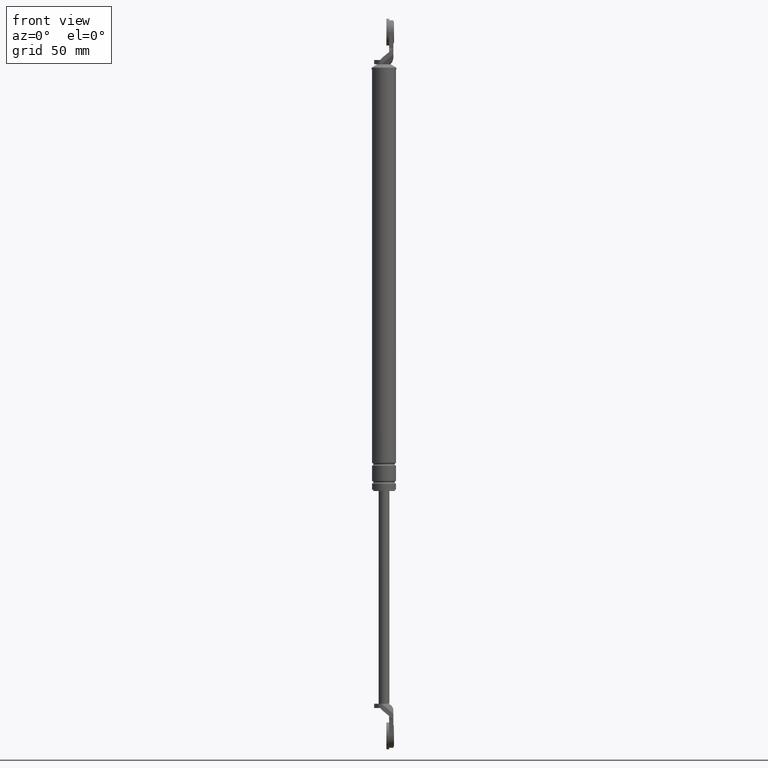
[diagram: clean part render]
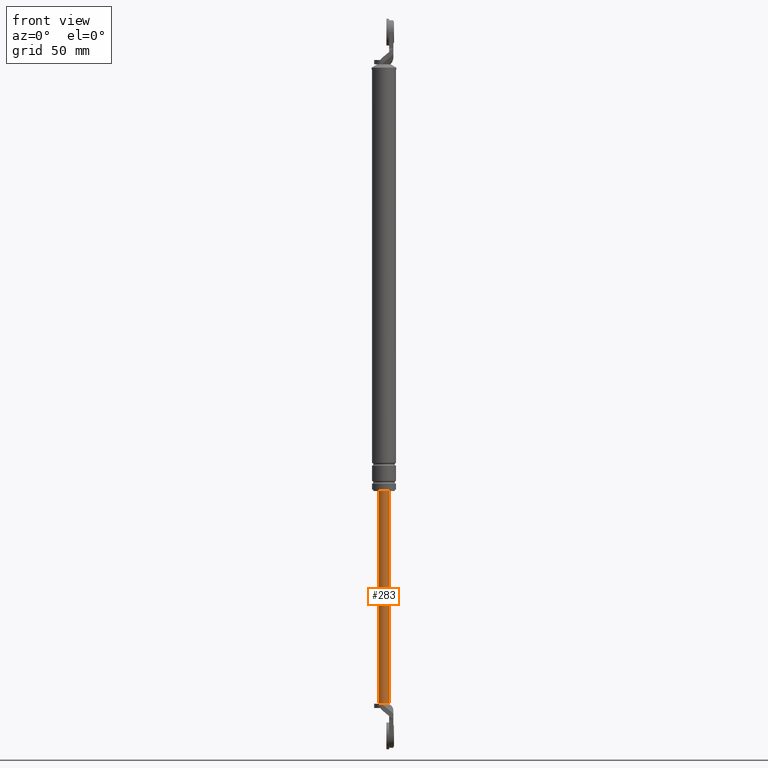
[diagram: same view with one face highlighted and labeled with its STEP entity id]
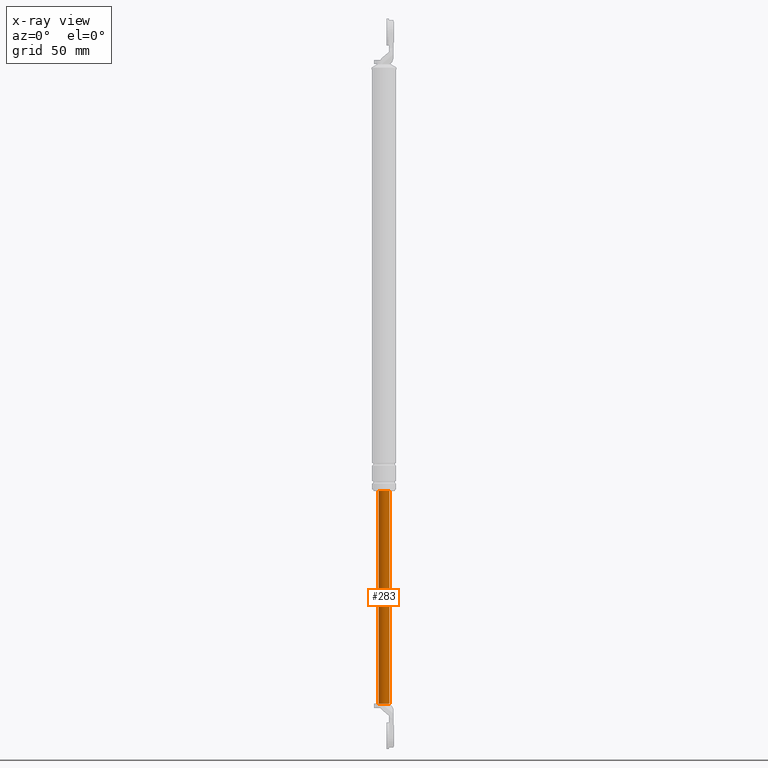
[diagram: x-ray of the same camera — body ghosted, the highlighted face saturated]
A machine part, front view. The second image highlights one B-rep face of the part: STEP entity #283.
The next image is the same camera in x-ray: the body ghosted, the highlighted face saturated — about 0% of this face is hidden behind the body in this view.
In plain terms, the highlighted cylindrical surface (edge-blend (fillet) strip) has radius 4 mm, axis along (0, 0, 1).
Its self-contained STEP definition (entity closure, byte-faithful):
#283=ADVANCED_FACE('',(#1087),#1086,.T.);
#1086=CYLINDRICAL_SURFACE('',#1750,4.00000000000E+000);
#1087=FACE_OUTER_BOUND('',#1751,.T.);
#1747=CARTESIAN_POINT('',(0.00000000000E+000,3.58204186421E-014,0.00000000000E+000));
#1748=DIRECTION('',(-0.00000000000E+000,-0.00000000000E+000,1.00000000000E+000));
#1749=DIRECTION('',(1.00000000000E+000,-0.00000000000E+000,-0.00000000000E+000));
#1750=AXIS2_PLACEMENT_3D('',#1747,#1748,#1749);
#1751=EDGE_LOOP('',(#2145,#2146,#2147,#2148,#2149));
#2145=ORIENTED_EDGE('',*,*,#2348,.F.);
#2146=ORIENTED_EDGE('',*,*,#2319,.F.);
#2147=ORIENTED_EDGE('',*,*,#2352,.T.);
#2148=ORIENTED_EDGE('',*,*,#2350,.T.);
#2149=ORIENTED_EDGE('',*,*,#2353,.F.);
#2319=EDGE_CURVE('',#3426,#3404,#3433,.T.);
#2348=EDGE_CURVE('',#3404,#3619,#3620,.T.);
#2350=EDGE_CURVE('',#3632,#3633,#3634,.T.);
#2352=EDGE_CURVE('',#3426,#3632,#3646,.T.);
#2353=EDGE_CURVE('',#3619,#3633,#3652,.T.);
#3404=VERTEX_POINT('',#4315);
#3426=VERTEX_POINT('',#4329);
#3433=CIRCLE('',#4337,4.00000000000E+000);
#3619=VERTEX_POINT('',#4439);
#3620=CIRCLE('',#4443,4.00000000000E+000);
#3632=VERTEX_POINT('',#4448);
#3633=VERTEX_POINT('',#4449);
#3634=CIRCLE('',#4453,4.00000000000E+000);
#3646=(BOUNDED_CURVE() B_SPLINE_CURVE(1,(#4458,#4459),.UNSPECIFIED.,.F.,.F.) B_SPLINE_CURVE_WITH_KNOTS((2,2),(5.58659216388E-002,9.44134078355E-001),.UNSPECIFIED.) CURVE() GEOMETRIC_REPRESENTATION_ITEM() RATIONAL_B_SPLINE_CURVE((1.00000000000E+000,1.00000000000E+000)) REPRESENTATION_ITEM('') );
#3652=(BOUNDED_CURVE() B_SPLINE_CURVE(1,(#4460,#4461),.UNSPECIFIED.,.F.,.F.) B_SPLINE_CURVE_WITH_KNOTS((2,2),(5.58659217877E-002,9.44134078212E-001),.UNSPECIFIED.) CURVE() GEOMETRIC_REPRESENTATION_ITEM() RATIONAL_B_SPLINE_CURVE((7.50000000000E-001,7.50000000000E-001)) REPRESENTATION_ITEM('') );
#4315=CARTESIAN_POINT('',(2.00000000000E+000,-3.46410161514E+000,-3.89000015000E+002));
#4329=CARTESIAN_POINT('',(4.00000000000E+000,3.61192557345E-014,-3.89000015000E+002));
#4334=CARTESIAN_POINT('',(0.00000000000E+000,3.58204186421E-014,-3.89000015000E+002));
#4335=DIRECTION('',(0.00000000000E+000,0.00000000000E+000,-1.00000000000E+000));
#4336=DIRECTION('',(5.00000000000E-001,8.66025403784E-001,0.00000000000E+000));
#4337=AXIS2_PLACEMENT_3D('',#4334,#4335,#4336);
#4439=CARTESIAN_POINT('',(-4.00000000000E+000,3.79704321421E-014,-3.89000015000E+002));
#4440=CARTESIAN_POINT('',(0.00000000000E+000,3.58204186421E-014,-3.89000015000E+002));
#4441=DIRECTION('',(0.00000000000E+000,0.00000000000E+000,-1.00000000000E+000));
#4442=DIRECTION('',(1.00000000000E+000,-0.00000000000E+000,-0.00000000000E+000));
#4443=AXIS2_PLACEMENT_3D('',#4440,#4441,#4442);
#4448=CARTESIAN_POINT('',(4.00000000000E+000,3.64153152077E-014,-2.30000015000E+002));
#4449=CARTESIAN_POINT('',(-4.00000000000E+000,3.58204186421E-014,-2.30000015000E+002));
#4450=CARTESIAN_POINT('',(0.00000000000E+000,3.58204186421E-014,-2.30000015000E+002));
#4451=DIRECTION('',(-0.00000000000E+000,0.00000000000E+000,-1.00000000000E+000));
#4452=DIRECTION('',(-1.00000000000E+000,-1.22460635382E-016,0.00000000000E+000));
#4453=AXIS2_PLACEMENT_3D('',#4450,#4451,#4452);
#4458=CARTESIAN_POINT('',(4.00000000000E+000,3.58204186421E-014,-3.89000015027E+002));
#4459=CARTESIAN_POINT('',(4.00000000000E+000,3.58204186421E-014,-2.30000014975E+002));
#4460=CARTESIAN_POINT('',(-4.00000000000E+000,3.58231962612E-014,-3.89000015000E+002));
#4461=CARTESIAN_POINT('',(-4.00000000000E+000,3.58231962612E-014,-2.30000015000E+002));